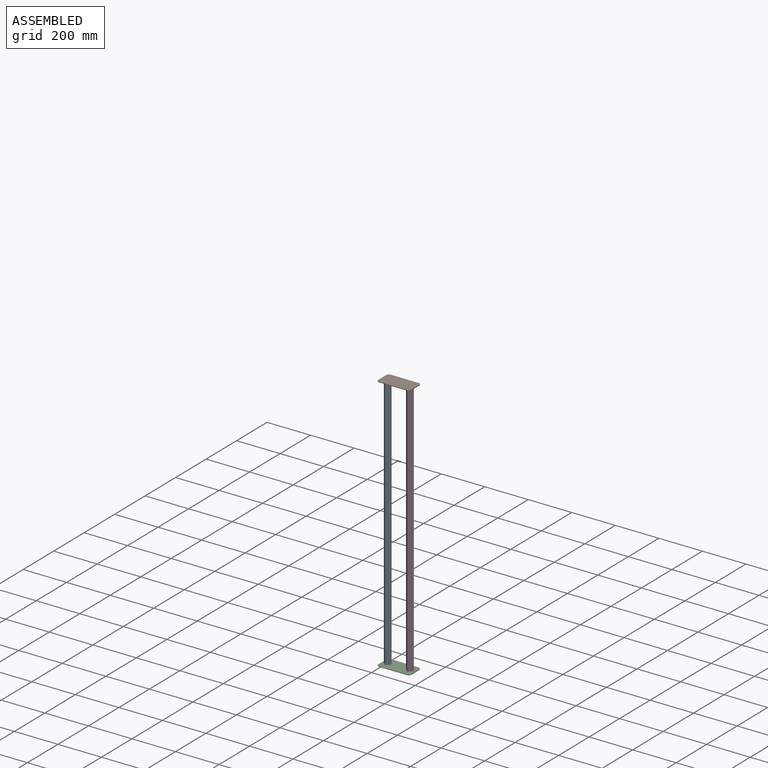
[diagram: assembled view]
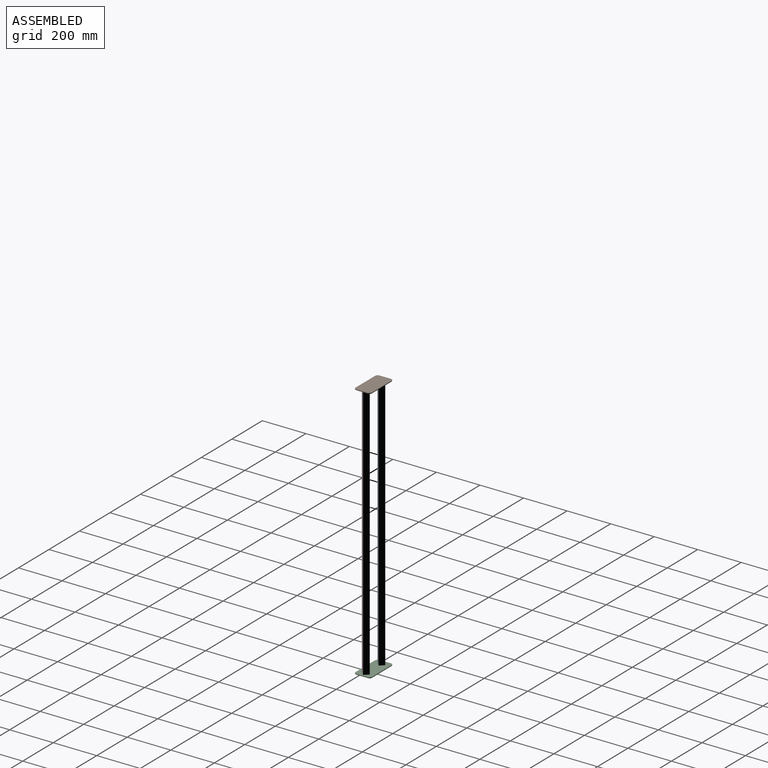
[diagram: assembled view, second angle]
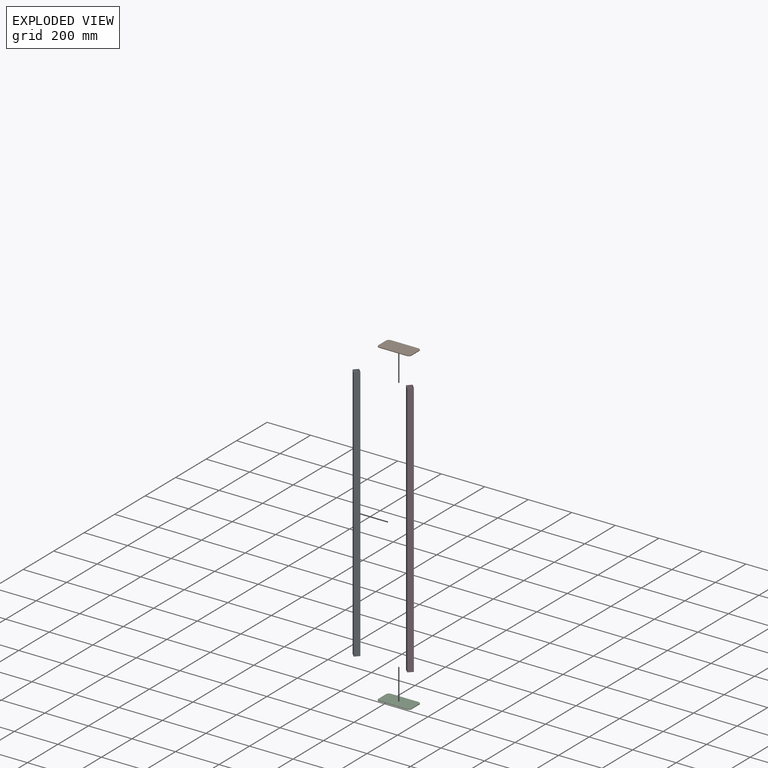
[diagram: exploded view]
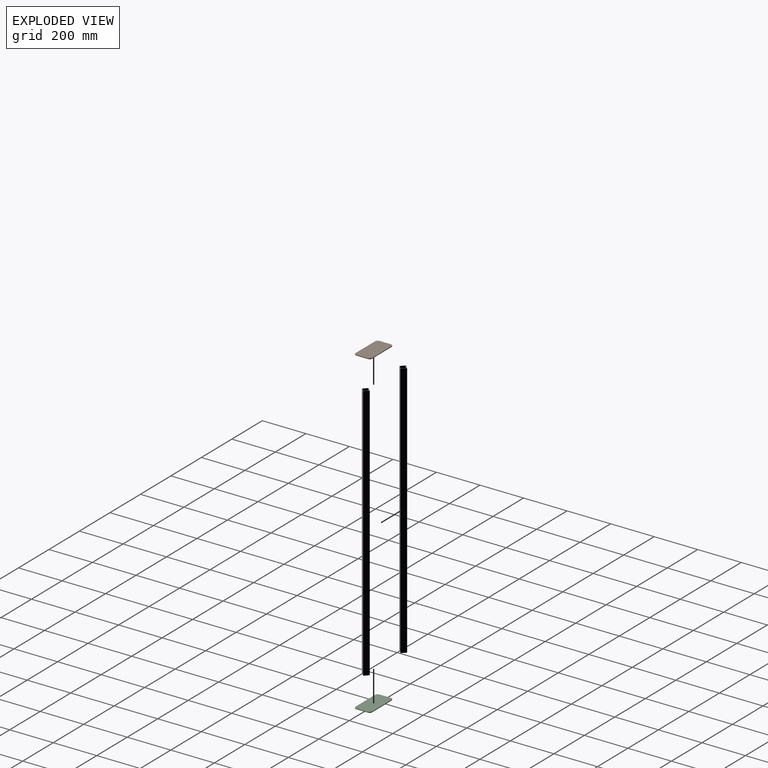
[diagram: exploded view, second angle]
ASSEMBLY  parts=4 mates=3
PART A: 14 faces, bbox 25.4x25.4x1181.1 mm
  f0: plane 1181.1x25.4mm, normal (-1,0,0), area 29999.9mm2, adj f1,f11,f12,f13
  f1: plane 1181.1x25.4mm, normal (0,-1,0), area 29999.9mm2, adj f0,f2,f12,f13
  f2: plane 1181.1x25.4mm, normal (1,0,0), area 29999.9mm2, adj f1,f11,f12,f13
  f3: plane 1181.1x19.05mm, normal (0,1,0), area 22500mm2, adj f4,f10,f12,f13
  f4: cylinder r=1.59mm len=1181.1mm, axis (0,0,-1), area 2945.2mm2, adj f3,f5,f12,f13
  f5: plane 1181.1x19.05mm, normal (1,0,0), area 22500mm2, adj f4,f6,f12,f13
  f6: cylinder r=1.59mm len=1181.1mm, axis (0,0,-1), area 2945.2mm2, adj f5,f7,f12,f13
  f7: plane 1181.1x19.05mm, normal (0,-1,0), area 22500mm2, adj f6,f8,f12,f13
  f8: cylinder r=1.59mm len=1181.1mm, axis (0,0,-1), area 2945.2mm2, adj f7,f9,f12,f13
  f9: plane 1181.1x19.05mm, normal (-1,0,0), area 22500mm2, adj f8,f10,f12,f13
  f10: cylinder r=1.59mm len=1181.1mm, axis (0,0,-1), area 2945.2mm2, adj f3,f9,f12,f13
  f11: plane 1181.1x25.4mm, normal (0,1,0), area 29999.9mm2, adj f0,f2,f12,f13
  f12: plane 25.4x25.4mm, normal (0,0,1), area 153.4mm2, adj f0,f1,f2,f3,f4,f5,f6,f7
  f13: plane 25.4x25.4mm, normal (0,0,-1), area 153.4mm2, adj f0,f1,f2,f3,f4,f5,f6,f7
PART B: 10 faces, bbox 152.4x76.2x3.2 mm
  f0: cylinder r=12.7mm len=12.7mm, axis (0,0,-1), area 63.3mm2, adj f1,f7,f8,f9
  f1: plane 127x3.18mm, normal (0,-1,0), area 403.2mm2, adj f0,f2,f8,f9
  f2: cylinder r=12.7mm len=12.7mm, axis (0,0,-1), area 63.3mm2, adj f1,f3,f8,f9
  f3: plane 50.8x3.18mm, normal (1,0,0), area 161.3mm2, adj f2,f4,f8,f9
  f4: cylinder r=12.7mm len=12.7mm, axis (0,0,-1), area 63.3mm2, adj f3,f5,f8,f9
  f5: plane 127x3.18mm, normal (0,1,0), area 403.2mm2, adj f4,f6,f8,f9
  f6: cylinder r=12.7mm len=12.7mm, axis (0,0,-1), area 63.3mm2, adj f5,f7,f8,f9
  f7: plane 50.8x3.18mm, normal (-1,0,0), area 161.3mm2, adj f0,f6,f8,f9
  f8: plane 152.4x76.2mm, normal (0,0,1), area 11474.4mm2, adj f0,f1,f2,f3,f4,f5,f6,f7
  f9: plane 152.4x76.2mm, normal (0,0,-1), area 11474.4mm2, adj f0,f1,f2,f3,f4,f5,f6,f7
PART C: same geometry as B
PART D: same geometry as A
PLACE A rot(axis=(-0.38,-0.92,0),180deg) t=(-48.03,19.85,1052.55)mm fixed
PLACE B t=(-128.7,188.03,1052.55)mm
PLACE C t=(-128.7,188.03,-128.55)mm
PLACE D rot(axis=(-0.38,-0.92,0),180deg) t=(53.93,19.85,1052.55)mm
MATE fastened C.f9 <-> A.f12  axis (0,0,1) through (-11.39,12.2,-128.55)mm
MATE fastened B.f9 <-> A.f13  axis (0,0,1) through (-11.39,12.2,1052.55)mm
MATE fastened D.f13 <-> B.f9  axis (0,0,1) through (90.58,12.2,1052.55)mm
